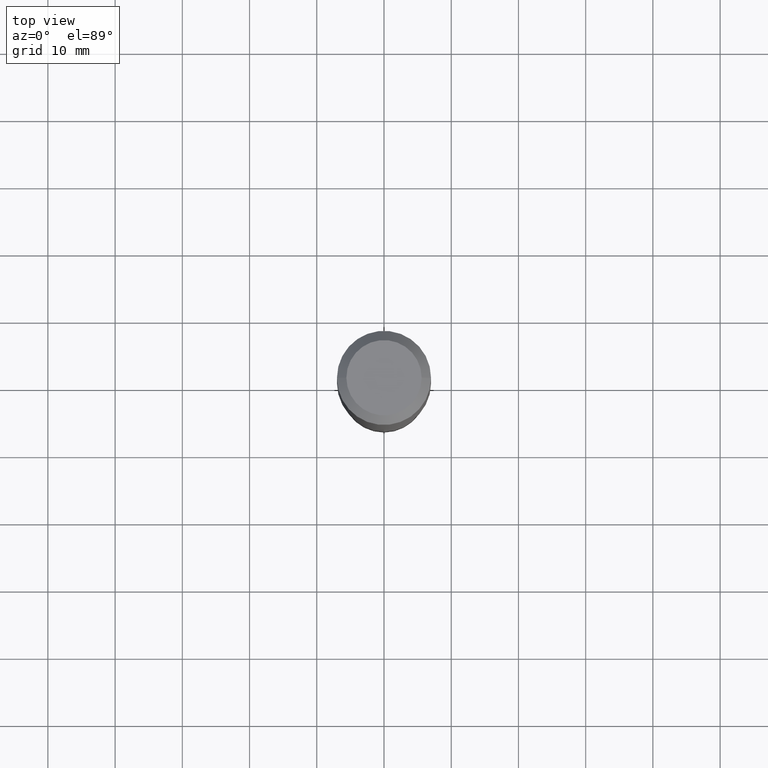
[diagram: clean part render]
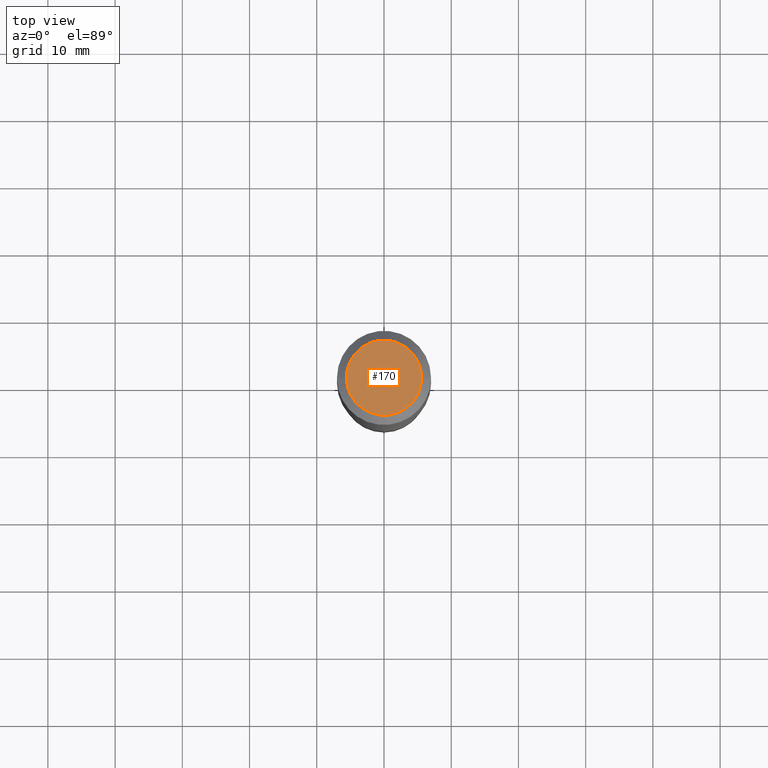
[diagram: same view with one face highlighted and labeled with its STEP entity id]
A machine part, top view. The second image highlights one B-rep face of the part: STEP entity #170.
In plain terms, the highlighted planar face has unit normal (0, -0, -1).
Its self-contained STEP definition (entity closure, byte-faithful):
#4 = DIRECTION ( 'NONE',  ( 1.000000000000000000, -6.982962677686266711E-15, 4.876132675269083677E-29 ) ) ;
#17 = AXIS2_PLACEMENT_3D ( 'NONE', #364, #19, #256 ) ;
#19 = DIRECTION ( 'NONE',  ( -2.445468806185136597E-29, 3.491481338843145583E-15, 1.000000000000000000 ) ) ;
#28 = PLANE ( 'NONE',  #196 ) ;
#56 = VERTEX_POINT ( 'NONE', #227 ) ;
#57 = CIRCLE ( 'NONE', #246, 0.2204800000000000093 ) ;
#80 = EDGE_CURVE ( 'NONE', #144, #56, #57, .T. ) ;
#144 = VERTEX_POINT ( 'NONE', #268 ) ;
#145 = DIRECTION ( 'NONE',  ( -1.000000000000000000, 6.982962677686265922E-15, -4.876176775795935793E-29 ) ) ;
#170 = ADVANCED_FACE ( 'NONE', ( #397 ), #28, .F. ) ;
#196 = AXIS2_PLACEMENT_3D ( 'NONE', #332, #448, #145 ) ;
#213 = ORIENTED_EDGE ( 'NONE', *, *, #80, .T. ) ;
#227 = CARTESIAN_POINT ( 'NONE',  ( 0.2204800000000000093, -1.797903149065768707E-15, 3.860086710924123164E-18 ) ) ;
#246 = AXIS2_PLACEMENT_3D ( 'NONE', #261, #337, #4 ) ;
#256 = DIRECTION ( 'NONE',  ( 1.000000000000000000, -6.982962677686266711E-15, 4.876132675269083677E-29 ) ) ;
#258 = EDGE_LOOP ( 'NONE', ( #213, #324 ) ) ;
#261 = CARTESIAN_POINT ( 'NONE',  ( -9.439721640706190018E-47, 1.347742071746724849E-32, 3.860086710912454339E-18 ) ) ;
#266 = CIRCLE ( 'NONE', #17, 0.2204800000000000093 ) ;
#268 = CARTESIAN_POINT ( 'NONE',  ( -0.2204800000000000093, 1.635828836874783961E-15, 3.860086710901350968E-18 ) ) ;
#301 = EDGE_CURVE ( 'NONE', #56, #144, #266, .T. ) ;
#324 = ORIENTED_EDGE ( 'NONE', *, *, #301, .T. ) ;
#332 = CARTESIAN_POINT ( 'NONE',  ( -4.719860820353095009E-47, 6.738710358733624243E-33, 1.930043355456227170E-18 ) ) ;
#337 = DIRECTION ( 'NONE',  ( -2.445468806185136597E-29, 3.491481338843145583E-15, 1.000000000000000000 ) ) ;
#364 = CARTESIAN_POINT ( 'NONE',  ( -9.439721640706190018E-47, 1.347742071746724849E-32, 3.860086710912454339E-18 ) ) ;
#397 = FACE_OUTER_BOUND ( 'NONE', #258, .T. ) ;
#448 = DIRECTION ( 'NONE',  ( 2.438088387897960049E-29, -3.491481338843145188E-15, -1.000000000000000000 ) ) ;